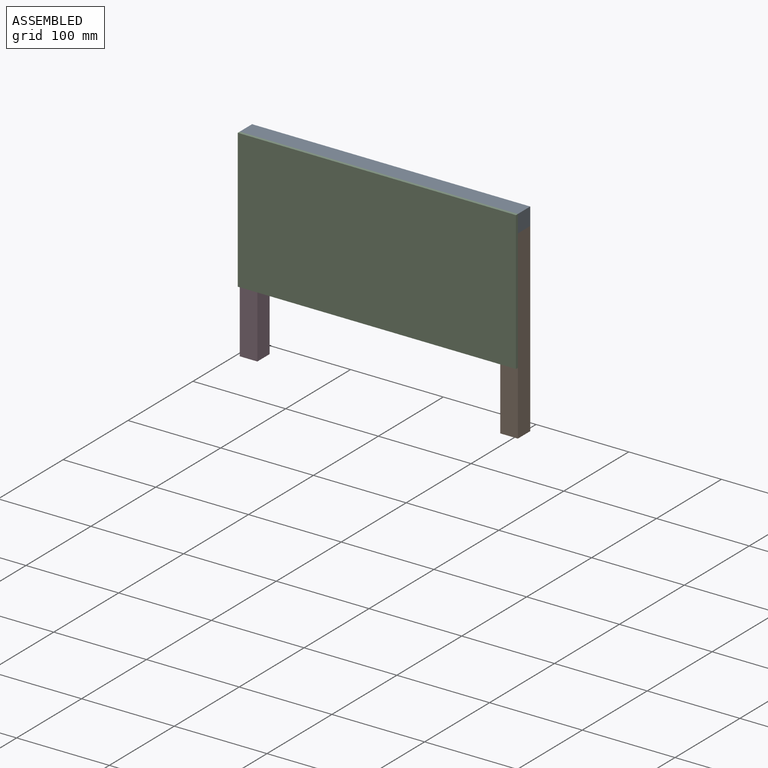
[diagram: assembled view]
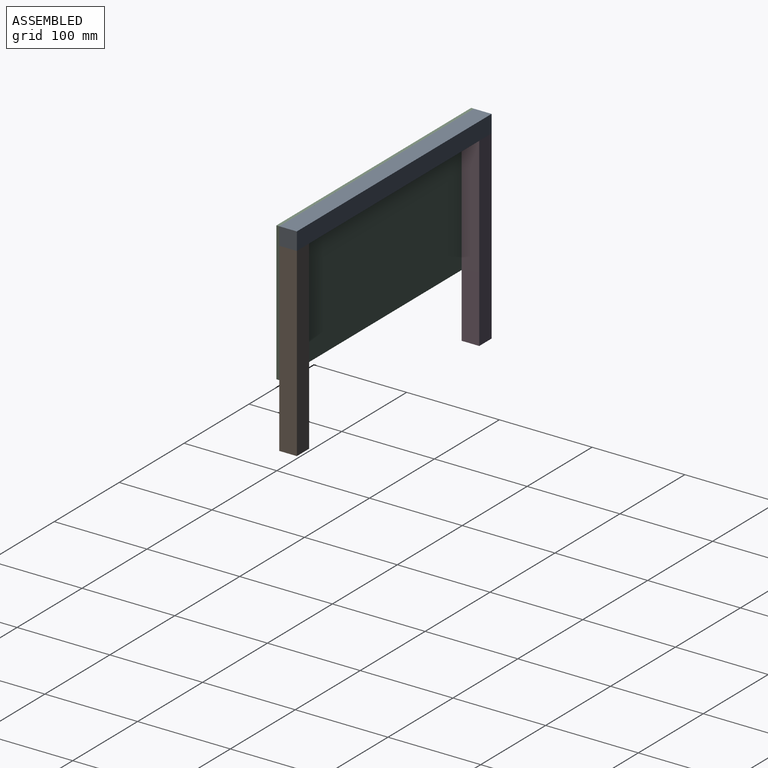
[diagram: assembled view, second angle]
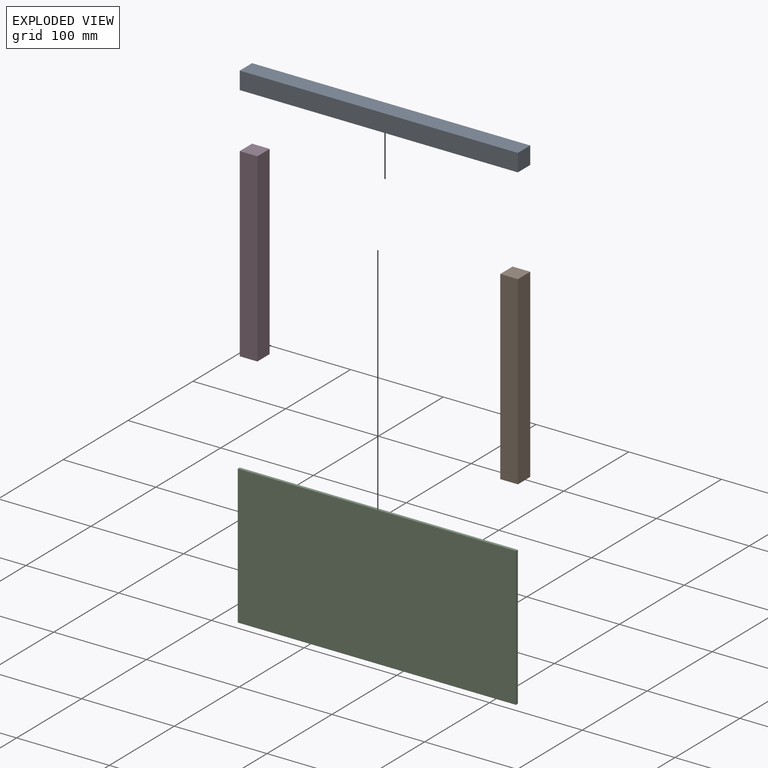
[diagram: exploded view]
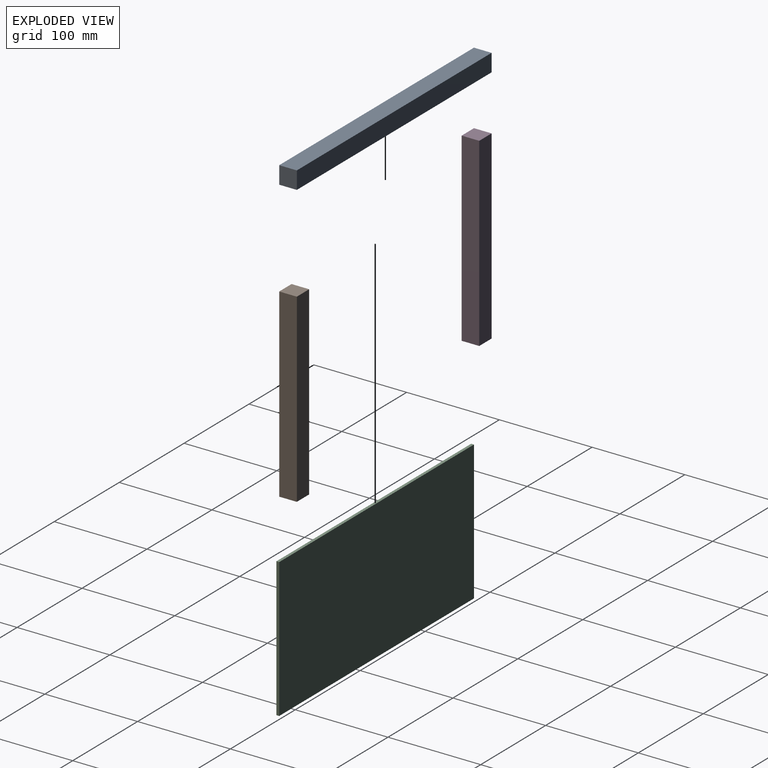
[diagram: exploded view, second angle]
ASSEMBLY  parts=4 mates=3
PART A: 6 faces, bbox 300x19x19 mm
  f0: plane 300x19mm, normal (0,0,-1), area 5700mm2, adj f1,f3,f4,f5
  f1: plane 19x19mm, normal (1,0,0), area 361mm2, adj f0,f2,f4,f5
  f2: plane 300x19mm, normal (0,0,1), area 5700mm2, adj f1,f3,f4,f5
  f3: plane 19x19mm, normal (-1,0,0), area 361mm2, adj f0,f2,f4,f5
  f4: plane 300x19mm, normal (0,-1,0), area 5700mm2, adj f0,f1,f2,f3
  f5: plane 300x19mm, normal (0,1,0), area 5700mm2, adj f0,f1,f2,f3
PART B: 6 faces, bbox 19x19x200 mm
  f0: plane 19x19mm, normal (0,0,-1), area 361mm2, adj f1,f3,f4,f5
  f1: plane 200x19mm, normal (1,0,0), area 3800mm2, adj f0,f2,f4,f5
  f2: plane 19x19mm, normal (0,0,1), area 361mm2, adj f1,f3,f4,f5
  f3: plane 200x19mm, normal (-1,0,0), area 3800mm2, adj f0,f2,f4,f5
  f4: plane 200x19mm, normal (0,-1,0), area 3800mm2, adj f0,f1,f2,f3
  f5: plane 200x19mm, normal (0,1,0), area 3800mm2, adj f0,f1,f2,f3
PART C: 6 faces, bbox 300x3x150 mm
  f0: plane 300x3mm, normal (0,0,-1), area 900mm2, adj f1,f3,f4,f5
  f1: plane 150x3mm, normal (1,0,0), area 450mm2, adj f0,f2,f4,f5
  f2: plane 300x3mm, normal (0,0,1), area 900mm2, adj f1,f3,f4,f5
  f3: plane 150x3mm, normal (-1,0,0), area 450mm2, adj f0,f2,f4,f5
  f4: plane 300x150mm, normal (0,-1,0), area 45000mm2, adj f0,f1,f2,f3
  f5: plane 300x150mm, normal (0,1,0), area 45000mm2, adj f0,f1,f2,f3
PART D: same geometry as B
PLACE A t=(-85.74,-78.22,104.68)mm
PLACE B t=(53.61,-78.22,-72.77)mm
PLACE C t=(-150.51,-97.22,-57.3)mm
PLACE D t=(-227.39,-78.22,-72.77)mm
MATE fastened D.f2 <-> A.f0  axis (0,0,1) through (-271.36,-78.22,13.01)mm
MATE fastened A.f2 <-> C.f2  axis (0,0,1) through (28.64,-97.22,32.01)mm
MATE fastened B.f2 <-> A.f0  axis (0,0,1) through (28.64,-97.22,13.01)mm
